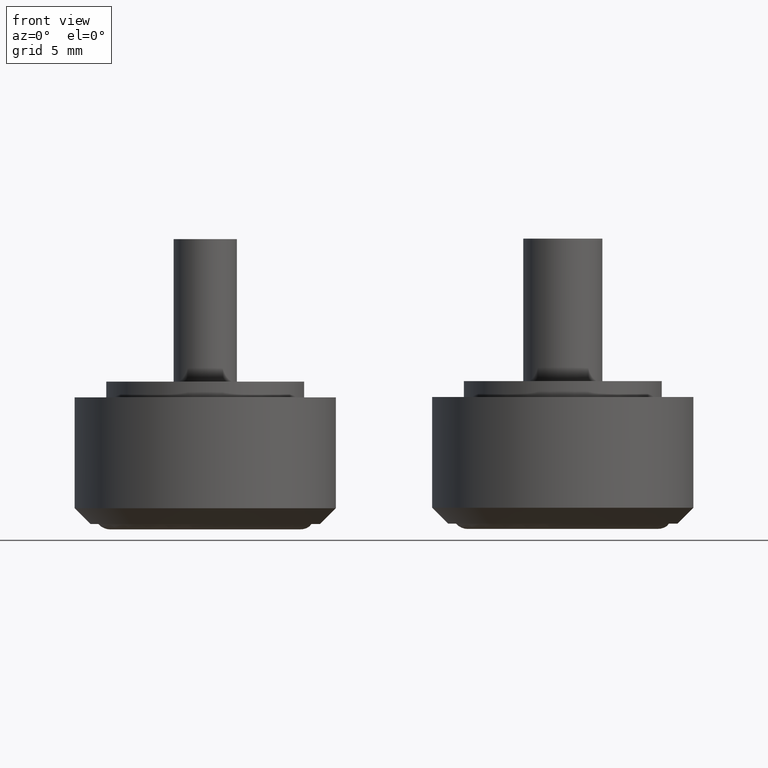
[diagram: clean part render]
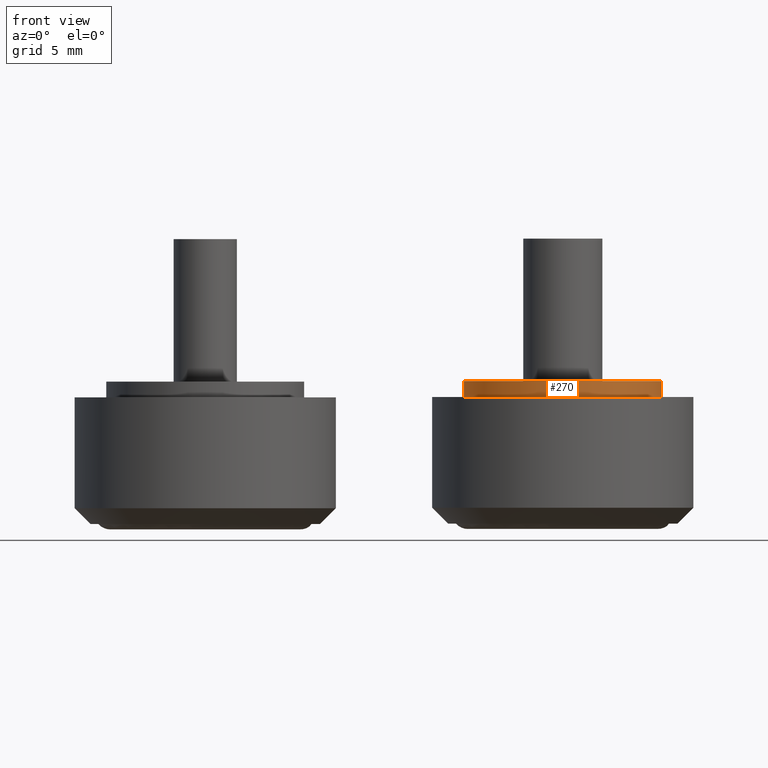
[diagram: same view with one face highlighted and labeled with its STEP entity id]
A machine part, front view. The second image highlights one B-rep face of the part: STEP entity #270.
In plain terms, the highlighted cylindrical surface (bore or boss wall) has radius 6.25 mm, axis along (-0, -0, 1).
Its self-contained STEP definition (entity closure, byte-faithful):
#62=FACE_BOUND('',#128,.T.);
#86=FACE_OUTER_BOUND('',#127,.T.);
#127=EDGE_LOOP('',(#237));
#128=EDGE_LOOP('',(#238));
#153=CIRCLE('',#319,6.25);
#154=CIRCLE('',#320,6.25);
#175=VERTEX_POINT('',#492);
#176=VERTEX_POINT('',#494);
#197=EDGE_CURVE('',#175,#175,#153,.T.);
#198=EDGE_CURVE('',#176,#176,#154,.T.);
#237=ORIENTED_EDGE('',*,*,#197,.F.);
#238=ORIENTED_EDGE('',*,*,#198,.F.);
#248=CYLINDRICAL_SURFACE('',#318,6.25);
#270=ADVANCED_FACE('',(#86,#62),#248,.T.);
#318=AXIS2_PLACEMENT_3D('',#491,#412,#413);
#319=AXIS2_PLACEMENT_3D('',#493,#414,#415);
#320=AXIS2_PLACEMENT_3D('',#495,#416,#417);
#412=DIRECTION('center_axis',(0.,0.,1.));
#413=DIRECTION('ref_axis',(-1.,0.,0.));
#414=DIRECTION('center_axis',(0.,0.,1.));
#415=DIRECTION('ref_axis',(-1.,0.,0.));
#416=DIRECTION('center_axis',(0.,0.,-1.));
#417=DIRECTION('ref_axis',(-1.,0.,0.));
#491=CARTESIAN_POINT('Origin',(0.,0.,8.));
#492=CARTESIAN_POINT('',(6.25,7.65404249467096E-16,9.));
#493=CARTESIAN_POINT('Origin',(0.,0.,9.));
#494=CARTESIAN_POINT('',(6.25,7.65404249467096E-16,8.));
#495=CARTESIAN_POINT('Origin',(0.,0.,8.));